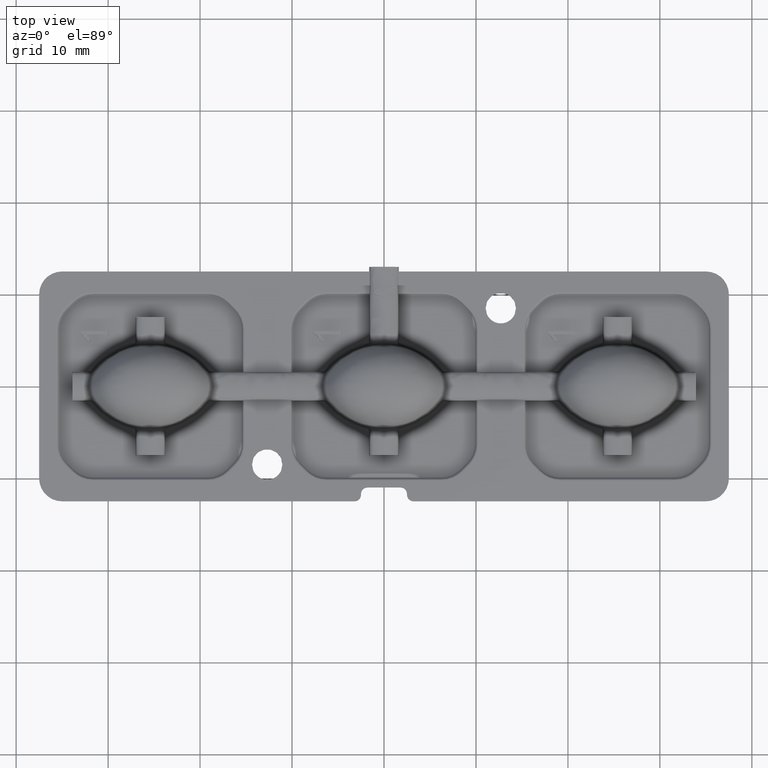
[diagram: clean part render]
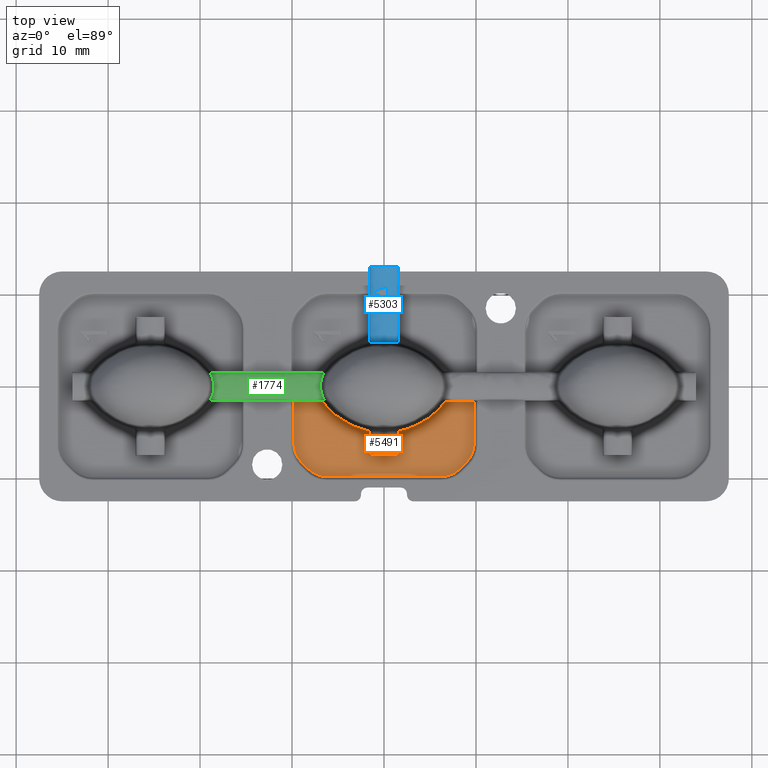
[diagram: same view with three faces highlighted in distinct colors, each labeled with its STEP entity id]
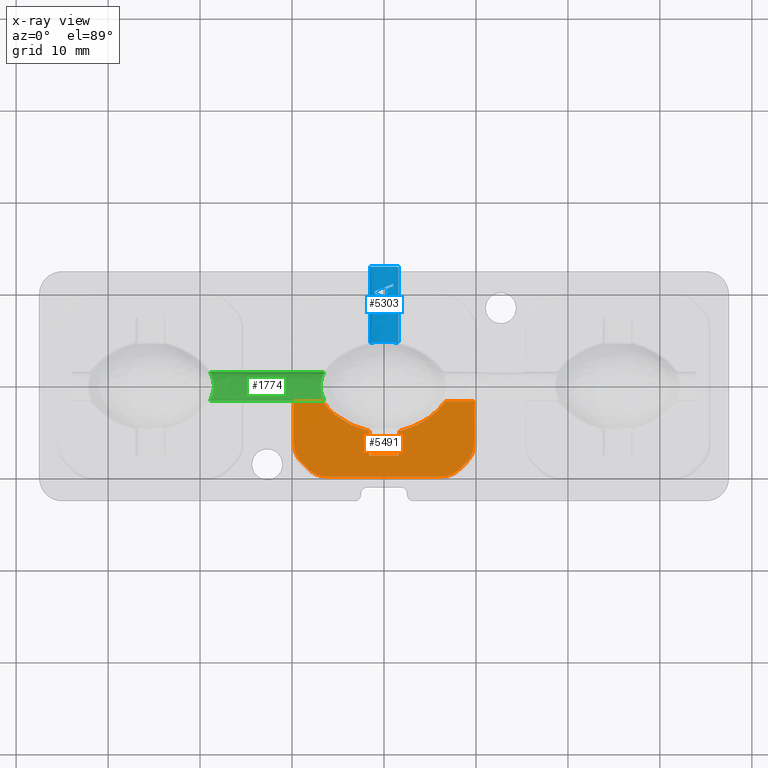
[diagram: x-ray of the same camera — body ghosted, the three highlighted faces saturated]
A machine part, top view with three faces highlighted in distinct colors.
The next image is the same camera in x-ray (body ghosted, the three faces saturated) — at least one of them is partly hidden behind the body in this view.
Their STEP definitions:

[orange] entity #5491 — the highlighted planar face has unit normal (-0, 0, 1).
#24 = CARTESIAN_POINT ( 'NONE',  ( 5.871946985160228400, -2.603623329385546600, 1.200000000000000400 ) ) ;
#56 = EDGE_CURVE ( 'NONE', #11094, #12962, #13674, .T. ) ;
#211 = CARTESIAN_POINT ( 'NONE',  ( 8.230346396616212700, -8.972987083735494800, 1.200000000000000000 ) ) ;
#298 = LINE ( 'NONE', #6994, #14225 ) ;
#340 = VERTEX_POINT ( 'NONE', #2918 ) ;
#356 = ORIENTED_EDGE ( 'NONE', *, *, #2196, .F. ) ;
#579 = ORIENTED_EDGE ( 'NONE', *, *, #6089, .T. ) ;
#589 = CARTESIAN_POINT ( 'NONE',  ( 1.604986396231113100, -13.50000000000001400, 1.200000000000000200 ) ) ;
#653 = DIRECTION ( 'NONE',  ( -1.000000000000000000, -2.891205793294677300E-016, -0.0000000000000000000 ) ) ;
#657 = ORIENTED_EDGE ( 'NONE', *, *, #5095, .T. ) ;
#709 = LINE ( 'NONE', #7538, #8323 ) ;
#718 = CARTESIAN_POINT ( 'NONE',  ( -4.889773173243635400, -3.431360263102932500, 1.200000000000000400 ) ) ;
#1070 = EDGE_CURVE ( 'NONE', #11094, #9932, #16345, .T. ) ;
#1092 = CARTESIAN_POINT ( 'NONE',  ( 9.790225092205682600, -6.257359312880716100, 1.200000000000000000 ) ) ;
#1179 = EDGE_CURVE ( 'NONE', #7366, #9932, #709, .T. ) ;
#1235 = VERTEX_POINT ( 'NONE', #11677 ) ;
#1387 = B_SPLINE_CURVE_WITH_KNOTS ( 'NONE', 3,
 ( #16191, #14839, #13473, #8116, #24, #9478, #1388, #10822, #2766, #12179, #4098, #13528 ),
 .UNSPECIFIED., .F., .F.,
 ( 4, 2, 2, 2, 2, 4 ),
 ( 4.725603763319382100E-014, 0.0007684751438846710100, 0.001536950287722086000, 0.003073900575396913300, 0.004610850863071738700, 0.006147801150746564100 ),
 .UNSPECIFIED. ) ;
#1388 = CARTESIAN_POINT ( 'NONE',  ( 4.883527946134527100, -3.435620280224842600, 1.199999999999998800 ) ) ;
#1568 = VECTOR ( 'NONE', #4537, 1000.000000000000000 ) ;
#1692 = ORIENTED_EDGE ( 'NONE', *, *, #5989, .T. ) ;
#1751 = EDGE_CURVE ( 'NONE', #4197, #2203, #3077, .T. ) ;
#1933 = CIRCLE ( 'NONE', #3177, 2.790225092205679000 ) ;
#2097 = CARTESIAN_POINT ( 'NONE',  ( -5.874902348171310100, -2.600703894446303500, 1.200000000000000200 ) ) ;
#2179 = DIRECTION ( 'NONE',  ( -0.0000000000000000000, 0.0000000000000000000, 1.000000000000000000 ) ) ;
#2196 = EDGE_CURVE ( 'NONE', #7366, #8088, #5170, .T. ) ;
#2203 = VERTEX_POINT ( 'NONE', #3444 ) ;
#2322 = ORIENTED_EDGE ( 'NONE', *, *, #3199, .T. ) ;
#2766 = CARTESIAN_POINT ( 'NONE',  ( 3.552732268703699500, -4.205318067845257500, 1.199999999999997300 ) ) ;
#2918 = CARTESIAN_POINT ( 'NONE',  ( 9.790225092205680800, -1.604986396231115700, 1.200000000000000000 ) ) ;
#3077 = LINE ( 'NONE', #7702, #16153 ) ;
#3177 = AXIS2_PLACEMENT_3D ( 'NONE', #7728, #17171, #9097 ) ;
#3199 = EDGE_CURVE ( 'NONE', #15365, #8088, #1387, .T. ) ;
#3282 = AXIS2_PLACEMENT_3D ( 'NONE', #3296, #12697, #4619 ) ;
#3296 = CARTESIAN_POINT ( 'NONE',  ( 7.000000000000000900, -6.257359312880716100, 1.200000000000000000 ) ) ;
#3392 = CARTESIAN_POINT ( 'NONE',  ( -2.598727141043612100, -4.596356834775626500, 1.200000000000000000 ) ) ;
#3444 = CARTESIAN_POINT ( 'NONE',  ( 8.972987083735498400, -8.230346396616209100, 1.200000000000000000 ) ) ;
#3451 = CARTESIAN_POINT ( 'NONE',  ( -6.387924370799548300, -2.030140906998150600, 1.199999999999999700 ) ) ;
#3512 = DIRECTION ( 'NONE',  ( 1.000000000000000000, 2.312964634635743400E-016, 0.0000000000000000000 ) ) ;
#3854 = VERTEX_POINT ( 'NONE', #7480 ) ;
#4049 = DIRECTION ( 'NONE',  ( -1.156482317317872000E-016, 1.000000000000000000, -0.0000000000000000000 ) ) ;
#4098 = CARTESIAN_POINT ( 'NONE',  ( 2.111039416817546600, -4.752664215908646700, 1.200000000000000600 ) ) ;
#4197 = VERTEX_POINT ( 'NONE', #211 ) ;
#4342 = EDGE_CURVE ( 'NONE', #2203, #14796, #8696, .T. ) ;
#4537 = DIRECTION ( 'NONE',  ( -2.891205793294677300E-016, 1.000000000000000000, -0.0000000000000000000 ) ) ;
#4619 = DIRECTION ( 'NONE',  ( 1.000000000000000000, 0.0000000000000000000, 0.0000000000000000000 ) ) ;
#4640 = EDGE_CURVE ( 'NONE', #14796, #340, #16503, .T. ) ;
#4784 = CARTESIAN_POINT ( 'NONE',  ( -6.681766801648329600, -1.604986396231120200, 1.200000000000000200 ) ) ;
#4918 = VERTEX_POINT ( 'NONE', #14774 ) ;
#5003 = VECTOR ( 'NONE', #3512, 1000.000000000000000 ) ;
#5095 = EDGE_CURVE ( 'NONE', #11211, #4197, #1933, .T. ) ;
#5170 = LINE ( 'NONE', #589, #1568 ) ;
#5350 = ORIENTED_EDGE ( 'NONE', *, *, #1179, .T. ) ;
#5491 = ADVANCED_FACE ( 'NONE', ( #12060 ), #14241, .T. ) ;
#5551 = CARTESIAN_POINT ( 'NONE',  ( -8.230346396616207400, -8.972987083735501900, 1.200000000000000000 ) ) ;
#5960 = ORIENTED_EDGE ( 'NONE', *, *, #4640, .T. ) ;
#5989 = EDGE_CURVE ( 'NONE', #340, #15365, #16613, .T. ) ;
#6067 = CARTESIAN_POINT ( 'NONE',  ( 6.257359312880717900, -9.790225092205680800, 1.200000000000000000 ) ) ;
#6089 = EDGE_CURVE ( 'NONE', #15168, #11211, #6274, .T. ) ;
#6274 = LINE ( 'NONE', #7562, #5003 ) ;
#6343 = DIRECTION ( 'NONE',  ( 0.7071067811865470200, 0.7071067811865480200, 0.0000000000000000000 ) ) ;
#6352 = CARTESIAN_POINT ( 'NONE',  ( -6.257359312880714300, -7.000000000000003600, 1.200000000000000000 ) ) ;
#6613 = DIRECTION ( 'NONE',  ( 2.891205793294677300E-016, -1.000000000000000000, 0.0000000000000000000 ) ) ;
#6791 = ORIENTED_EDGE ( 'NONE', *, *, #1751, .T. ) ;
#6959 = CARTESIAN_POINT ( 'NONE',  ( -6.999999999999999100, -6.257359312880718800, 1.200000000000000000 ) ) ;
#6994 = CARTESIAN_POINT ( 'NONE',  ( -8.601666740175852900, -8.601666740175856400, 1.200000000000000000 ) ) ;
#7129 = CIRCLE ( 'NONE', #9276, 2.790225092205679900 ) ;
#7366 = VERTEX_POINT ( 'NONE', #12280 ) ;
#7443 = CARTESIAN_POINT ( 'NONE',  ( -1.604986396231095700, -4.868196446352627900, 1.200000000000000200 ) ) ;
#7480 = CARTESIAN_POINT ( 'NONE',  ( -8.972987083735494800, -8.230346396616214500, 1.200000000000000000 ) ) ;
#7522 = CARTESIAN_POINT ( 'NONE',  ( 0.0000000000000000000, 0.0000000000000000000, 1.200000000000000000 ) ) ;
#7530 = CARTESIAN_POINT ( 'NONE',  ( -6.681766801648329600, -1.604986396231120200, 1.200000000000000200 ) ) ;
#7538 = CARTESIAN_POINT ( 'NONE',  ( 1.301042606982607500E-015, -7.500000000000016900, 1.200000000000000000 ) ) ;
#7562 = CARTESIAN_POINT ( 'NONE',  ( 2.264444440339520400E-015, -9.790225092205682600, 1.200000000000000000 ) ) ;
#7588 = ORIENTED_EDGE ( 'NONE', *, *, #8021, .T. ) ;
#7702 = CARTESIAN_POINT ( 'NONE',  ( 8.601666740175858200, -8.601666740175847500, 1.200000000000000000 ) ) ;
#7715 = DIRECTION ( 'NONE',  ( 1.000000000000000000, 0.0000000000000000000, 0.0000000000000000000 ) ) ;
#7728 = CARTESIAN_POINT ( 'NONE',  ( 6.257359312880717000, -7.000000000000000000, 1.200000000000000000 ) ) ;
#8014 = CARTESIAN_POINT ( 'NONE',  ( -500025.4000000000200, -1.604986396375681200, 1.200000000000000200 ) ) ;
#8021 = EDGE_CURVE ( 'NONE', #17099, #15168, #9636, .T. ) ;
#8088 = VERTEX_POINT ( 'NONE', #13771 ) ;
#8116 = CARTESIAN_POINT ( 'NONE',  ( 6.051159768579935900, -2.420587394688373400, 1.199999999999998600 ) ) ;
#8224 = CARTESIAN_POINT ( 'NONE',  ( -9.790225092205680800, -1.132222220169760000E-015, 1.200000000000000000 ) ) ;
#8323 = VECTOR ( 'NONE', #16982, 1000.000000000000000 ) ;
#8325 = DIRECTION ( 'NONE',  ( 1.000000000000000000, 0.0000000000000000000, 0.0000000000000000000 ) ) ;
#8685 = CARTESIAN_POINT ( 'NONE',  ( 22.23345744422082500, -1.604986396231111900, 1.200000000000000200 ) ) ;
#8696 = CIRCLE ( 'NONE', #3282, 2.790225092205679000 ) ;
#8812 = CARTESIAN_POINT ( 'NONE',  ( -4.013026375853863600, -3.972434500499423500, 1.200000000000000200 ) ) ;
#9084 = CARTESIAN_POINT ( 'NONE',  ( -6.257359312880713500, -9.790225092205684400, 1.200000000000000000 ) ) ;
#9097 = DIRECTION ( 'NONE',  ( 1.000000000000000000, 0.0000000000000000000, 0.0000000000000000000 ) ) ;
#9173 = AXIS2_PLACEMENT_3D ( 'NONE', #7522, #2179, #11602 ) ;
#9189 = CARTESIAN_POINT ( 'NONE',  ( -1.604986396231095700, -7.500000000000016900, 1.200000000000000200 ) ) ;
#9271 = ORIENTED_EDGE ( 'NONE', *, *, #14909, .T. ) ;
#9276 = AXIS2_PLACEMENT_3D ( 'NONE', #6959, #16407, #8325 ) ;
#9345 = VECTOR ( 'NONE', #4049, 1000.000000000000000 ) ;
#9448 = ORIENTED_EDGE ( 'NONE', *, *, #10691, .T. ) ;
#9478 = CARTESIAN_POINT ( 'NONE',  ( 5.304758042730775900, -3.124135430853006900, 1.200000000000000600 ) ) ;
#9636 = CIRCLE ( 'NONE', #13290, 2.790225092205679900 ) ;
#9693 = EDGE_CURVE ( 'NONE', #3854, #17099, #298, .T. ) ;
#9932 = VERTEX_POINT ( 'NONE', #9189 ) ;
#10179 = CARTESIAN_POINT ( 'NONE',  ( -5.308210513774768400, -3.121377361931393100, 1.200000000000000000 ) ) ;
#10630 = LINE ( 'NONE', #8224, #14645 ) ;
#10691 = EDGE_CURVE ( 'NONE', #1235, #3854, #7129, .T. ) ;
#10822 = CARTESIAN_POINT ( 'NONE',  ( 4.008845946473726100, -3.974602842785590200, 1.199999999999998600 ) ) ;
#11067 = DIRECTION ( 'NONE',  ( 0.7071067811865477900, -0.7071067811865473500, 0.0000000000000000000 ) ) ;
#11094 = VERTEX_POINT ( 'NONE', #14969 ) ;
#11117 = CARTESIAN_POINT ( 'NONE',  ( 6.681766774022442200, -1.604986396231116400, 1.200000000000000200 ) ) ;
#11145 = ORIENTED_EDGE ( 'NONE', *, *, #1070, .F. ) ;
#11211 = VERTEX_POINT ( 'NONE', #6067 ) ;
#11325 = ORIENTED_EDGE ( 'NONE', *, *, #56, .T. ) ;
#11518 = CARTESIAN_POINT ( 'NONE',  ( -6.053741275003224200, -2.417796191609667300, 1.200000000000000000 ) ) ;
#11602 = DIRECTION ( 'NONE',  ( 1.000000000000000000, 0.0000000000000000000, 0.0000000000000000000 ) ) ;
#11677 = CARTESIAN_POINT ( 'NONE',  ( -9.790225092205680800, -6.257359312880718800, 1.200000000000000000 ) ) ;
#11964 = EDGE_LOOP ( 'NONE', ( #9271, #9448, #15088, #7588, #579, #657, #6791, #14043, #5960, #1692, #2322, #356, #5350, #11145, #11325, #17412 ) ) ;
#12060 = FACE_OUTER_BOUND ( 'NONE', #11964, .T. ) ;
#12179 = CARTESIAN_POINT ( 'NONE',  ( 2.605275337363737200, -4.593979783730624400, 1.199999999999997500 ) ) ;
#12280 = CARTESIAN_POINT ( 'NONE',  ( 1.604986396231113100, -7.500000000000015100, 1.200000000000000200 ) ) ;
#12327 = VECTOR ( 'NONE', #6613, 1000.000000000000000 ) ;
#12697 = DIRECTION ( 'NONE',  ( -0.0000000000000000000, 0.0000000000000000000, 1.000000000000000000 ) ) ;
#12863 = CARTESIAN_POINT ( 'NONE',  ( -6.543406433062817700, -1.825521505752227800, 1.200000000000000400 ) ) ;
#12962 = VERTEX_POINT ( 'NONE', #7530 ) ;
#13022 = VECTOR ( 'NONE', #653, 1000.000000000000000 ) ;
#13290 = AXIS2_PLACEMENT_3D ( 'NONE', #6352, #15789, #7715 ) ;
#13337 = CARTESIAN_POINT ( 'NONE',  ( -1.604986396375657200, 500000.0000000000600, 1.200000000000000200 ) ) ;
#13473 = CARTESIAN_POINT ( 'NONE',  ( 6.386414261580104500, -2.032093195035173500, 1.199999999999998800 ) ) ;
#13528 = CARTESIAN_POINT ( 'NONE',  ( 1.604986396231113100, -4.868196156061174800, 1.200000000000000200 ) ) ;
#13674 = B_SPLINE_CURVE_WITH_KNOTS ( 'NONE', 3,
 ( #7443, #15531, #3392, #16888, #8812, #718, #10179, #2097, #11518, #3451, #12863, #4784 ),
 .UNSPECIFIED., .F., .F.,
 ( 4, 2, 2, 2, 2, 4 ),
 ( 5.365491806645020500E-014, 0.001539940560645865300, 0.003079881121238075600, 0.004619821681830283700, 0.005389791962126387800, 0.006159762242422491900 ),
 .UNSPECIFIED. ) ;
#13727 = VECTOR ( 'NONE', #17449, 1000.000000000000000 ) ;
#13771 = CARTESIAN_POINT ( 'NONE',  ( 1.604986396231113100, -4.868196156061174800, 1.200000000000000200 ) ) ;
#14043 = ORIENTED_EDGE ( 'NONE', *, *, #4342, .T. ) ;
#14225 = VECTOR ( 'NONE', #11067, 1000.000000000000000 ) ;
#14241 = PLANE ( 'NONE',  #9173 ) ;
#14645 = VECTOR ( 'NONE', #16299, 1000.000000000000000 ) ;
#14774 = CARTESIAN_POINT ( 'NONE',  ( -9.790225092205680800, -1.604986396231116600, 1.200000000000000000 ) ) ;
#14796 = VERTEX_POINT ( 'NONE', #1092 ) ;
#14839 = CARTESIAN_POINT ( 'NONE',  ( 6.542612672048586700, -1.826786567312871600, 1.200000000000000200 ) ) ;
#14909 = EDGE_CURVE ( 'NONE', #4918, #1235, #10630, .T. ) ;
#14969 = CARTESIAN_POINT ( 'NONE',  ( -1.604986396231095700, -4.868196446352627900, 1.200000000000000200 ) ) ;
#15088 = ORIENTED_EDGE ( 'NONE', *, *, #9693, .T. ) ;
#15168 = VERTEX_POINT ( 'NONE', #9084 ) ;
#15365 = VERTEX_POINT ( 'NONE', #11117 ) ;
#15531 = CARTESIAN_POINT ( 'NONE',  ( -2.109452835072328700, -4.753026789037837900, 1.200000000000000000 ) ) ;
#15789 = DIRECTION ( 'NONE',  ( -0.0000000000000000000, 0.0000000000000000000, 1.000000000000000000 ) ) ;
#16153 = VECTOR ( 'NONE', #6343, 1000.000000000000000 ) ;
#16189 = CARTESIAN_POINT ( 'NONE',  ( 9.790225092205680800, 1.132222220169760200E-015, 1.200000000000000000 ) ) ;
#16191 = CARTESIAN_POINT ( 'NONE',  ( 6.681766774022442200, -1.604986396231116400, 1.200000000000000200 ) ) ;
#16299 = DIRECTION ( 'NONE',  ( 1.156482317317871700E-016, -1.000000000000000000, 0.0000000000000000000 ) ) ;
#16345 = LINE ( 'NONE', #13337, #12327 ) ;
#16407 = DIRECTION ( 'NONE',  ( -0.0000000000000000000, 0.0000000000000000000, 1.000000000000000000 ) ) ;
#16503 = LINE ( 'NONE', #16189, #9345 ) ;
#16572 = EDGE_CURVE ( 'NONE', #4918, #12962, #17330, .T. ) ;
#16613 = LINE ( 'NONE', #8685, #13022 ) ;
#16888 = CARTESIAN_POINT ( 'NONE',  ( -3.549439143370271700, -4.206975756684886200, 1.200000000000000200 ) ) ;
#16982 = DIRECTION ( 'NONE',  ( -1.000000000000000000, -1.734723475976805900E-016, 0.0000000000000000000 ) ) ;
#17099 = VERTEX_POINT ( 'NONE', #5551 ) ;
#17171 = DIRECTION ( 'NONE',  ( -0.0000000000000000000, 0.0000000000000000000, 1.000000000000000000 ) ) ;
#17330 = LINE ( 'NONE', #8014, #13727 ) ;
#17412 = ORIENTED_EDGE ( 'NONE', *, *, #16572, .F. ) ;
#17449 = DIRECTION ( 'NONE',  ( 1.000000000000000000, 2.891205793294677300E-016, -0.0000000000000000000 ) ) ;

[blue] entity #5303 — the highlighted face is a freeform B-spline surface patch.
#226 = FACE_OUTER_BOUND ( 'NONE', #14054, .T. ) ;
#268 = CARTESIAN_POINT ( 'NONE',  ( 1.000000000000068800, 8.850277927933802900, 1.878465616715162100 ) ) ;
#270 = CARTESIAN_POINT ( 'NONE',  ( 1.551396557744884700, 4.700555855833954400, 1.500000000000000000 ) ) ;
#315 = DIRECTION ( 'NONE',  ( -2.891205793294677300E-016, 1.000000000000000000, -0.0000000000000000000 ) ) ;
#377 = VECTOR ( 'NONE', #14934, 1000.000000000000000 ) ;
#388 = EDGE_CURVE ( 'NONE', #14094, #10120, #13624, .T. ) ;
#464 = CARTESIAN_POINT ( 'NONE',  ( -0.1406771418276011600, 12.99999999996522200, 1.992222364479167900 ) ) ;
#566 = ORIENTED_EDGE ( 'NONE', *, *, #388, .T. ) ;
#795 = LINE ( 'NONE', #6844, #377 ) ;
#806 = VERTEX_POINT ( 'NONE', #1631 ) ;
#853 = CARTESIAN_POINT ( 'NONE',  ( -0.3364983984002533600, 10.63274442594690700, 1.984106906702397800 ) ) ;
#1029 = B_SPLINE_SURFACE_WITH_KNOTS ( 'NONE', 3, 1, ( 
 ( #270, #4284 ),
 ( #1637, #11073 ),
 ( #3013, #12423 ),
 ( #4341, #13779 ) ),
 .UNSPECIFIED., .F., .F., .F.,
 ( 4, 4 ),
 ( 2, 2 ),
 ( 0.0000000000000000000, 1.000000000000000000 ),
 ( 0.0000000000000000000, 1.000000000000000000 ),
 .UNSPECIFIED. ) ;
#1098 = CARTESIAN_POINT ( 'NONE',  ( -0.5728415203271811600, 4.815613606390656700, 1.970967718215550500 ) ) ;
#1165 = CARTESIAN_POINT ( 'NONE',  ( 0.6693417698204753300, 9.388414385372319900, 1.949022290019126500 ) ) ;
#1167 = B_SPLINE_CURVE_WITH_KNOTS ( 'NONE', 3,
 ( #5113, #2358, #11835, #14547, #6467, #15906, #7827, #17261, #9192, #1098, #10543, #2476, #11892, #3836, #13255, #5175, #14609, #6527, #15966, #7882, #17318, #9251 ),
 .UNSPECIFIED., .F., .F.,
 ( 4, 2, 2, 2, 2, 2, 2, 2, 2, 2, 4 ),
 ( -5.999999564826702100E-008, 0.0001078909410122927900, 0.0002158418820202338200, 0.0004317437640361158400, 0.0008635475280678798900, 0.001727155056131407400, 0.002590762584194935400, 0.003022566348226699200, 0.003238468230242580600, 0.003346419171250521400, 0.003454370112258462500 ),
 .UNSPECIFIED. ) ;
#1264 = EDGE_CURVE ( 'NONE', #2316, #16225, #15518, .T. ) ;
#1631 = CARTESIAN_POINT ( 'NONE',  ( -1.551396557744874700, 12.50000000000000400, 1.500000000000000200 ) ) ;
#1637 = CARTESIAN_POINT ( 'NONE',  ( 1.434163770094247300, 4.700555855833954400, 2.156278079737628000 ) ) ;
#1656 = CARTESIAN_POINT ( 'NONE',  ( 1.000000000000068800, 8.850277927933802900, 1.878465616715162100 ) ) ;
#1764 = VERTEX_POINT ( 'NONE', #3709 ) ;
#1837 = CARTESIAN_POINT ( 'NONE',  ( 0.5657967652940795200, 13.00000000005048800, 1.971851134262347500 ) ) ;
#1864 = LINE ( 'NONE', #7546, #12203 ) ;
#2094 = ORIENTED_EDGE ( 'NONE', *, *, #1264, .T. ) ;
#2134 = VECTOR ( 'NONE', #15839, 1000.000000000000000 ) ;
#2240 = CARTESIAN_POINT ( 'NONE',  ( 0.1655054810351266600, 10.83205766496133300, 1.992273706027030800 ) ) ;
#2313 = CARTESIAN_POINT ( 'NONE',  ( 0.7978830794528341000, 10.78936141119123500, 1.932737377856451600 ) ) ;
#2316 = VERTEX_POINT ( 'NONE', #10407 ) ;
#2358 = CARTESIAN_POINT ( 'NONE',  ( -1.545658025916480900, 4.781176024606915900, 1.532124738555414000 ) ) ;
#2476 = CARTESIAN_POINT ( 'NONE',  ( 0.2864335833072216800, 4.828431654386364800, 1.992198830374981600 ) ) ;
#2545 = CARTESIAN_POINT ( 'NONE',  ( 0.1694910904782765700, 9.586872728210364500, 1.992142633867245200 ) ) ;
#2763 = CARTESIAN_POINT ( 'NONE',  ( 1.000000000000068600, 9.257131410256409500, 1.878465616715162100 ) ) ;
#2900 = EDGE_CURVE ( 'NONE', #13888, #17296, #15912, .T. ) ;
#2981 = EDGE_CURVE ( 'NONE', #3809, #9285, #17069, .T. ) ;
#3013 = CARTESIAN_POINT ( 'NONE',  ( -1.434163770094237300, 4.700555855833954400, 2.156278079737625800 ) ) ;
#3204 = CARTESIAN_POINT ( 'NONE',  ( 1.125553234926004900, 12.99999999996521900, 1.848443464120101100 ) ) ;
#3311 = CARTESIAN_POINT ( 'NONE',  ( -0.9999999999930415700, 10.36931089746197200, 1.878465616708745700 ) ) ;
#3475 = CARTESIAN_POINT ( 'NONE',  ( -1.551396557744871200, 4.796338257051487200, 1.500000000000000000 ) ) ;
#3597 = CARTESIAN_POINT ( 'NONE',  ( 0.6694950416595175600, 11.03215928955084000, 1.949051288820351300 ) ) ;
#3673 = CARTESIAN_POINT ( 'NONE',  ( 0.9999999999999997800, 10.86410256409377500, 1.878465616706878500 ) ) ;
#3709 = CARTESIAN_POINT ( 'NONE',  ( -1.000000000000000700, 10.05120192307692200, 1.878465616715177400 ) ) ;
#3809 = VERTEX_POINT ( 'NONE', #3311 ) ;
#3836 = CARTESIAN_POINT ( 'NONE',  ( 0.9909391049692422000, 4.783206184752427400, 1.884720816295779100 ) ) ;
#3887 = CARTESIAN_POINT ( 'NONE',  ( -0.3340784965197949300, 9.786807608212930300, 1.984316524403489700 ) ) ;
#4020 = CARTESIAN_POINT ( 'NONE',  ( 1.000000000000000200, 9.556410256423488300, 1.878465616706878500 ) ) ;
#4284 = CARTESIAN_POINT ( 'NONE',  ( 1.551396557744882500, 12.99999999997680800, 1.500000000000000000 ) ) ;
#4341 = CARTESIAN_POINT ( 'NONE',  ( -1.551396557744871400, 4.700555855833954400, 1.500000000000000000 ) ) ;
#4380 = ORIENTED_EDGE ( 'NONE', *, *, #7432, .T. ) ;
#4473 = CARTESIAN_POINT ( 'NONE',  ( -1.382199035027006100, 13.00000000005048800, 1.725582940220180300 ) ) ;
#4516 = EDGE_CURVE ( 'NONE', #5466, #13888, #1167, .T. ) ;
#4529 = CARTESIAN_POINT ( 'NONE',  ( 1.383429941629816800, 12.99999999996522100, 1.724708253197922300 ) ) ;
#4775 = CARTESIAN_POINT ( 'NONE',  ( 0.3846153846153846400, 9.783974358974358400, 1.977414605960348100 ) ) ;
#4923 = CARTESIAN_POINT ( 'NONE',  ( 1.000000000000068200, 11.16338141025641000, 1.878465616715162100 ) ) ;
#5062 = ORIENTED_EDGE ( 'NONE', *, *, #6742, .T. ) ;
#5087 = DIRECTION ( 'NONE',  ( 2.891205793294677300E-016, -1.000000000000000000, 0.0000000000000000000 ) ) ;
#5113 = CARTESIAN_POINT ( 'NONE',  ( -1.551396557744871200, 4.796338257051487200, 1.500000000000000000 ) ) ;
#5135 = ORIENTED_EDGE ( 'NONE', *, *, #16017, .T. ) ;
#5175 = CARTESIAN_POINT ( 'NONE',  ( 1.324855847315411900, 4.755441841975180500, 1.757467659278951800 ) ) ;
#5240 = CARTESIAN_POINT ( 'NONE',  ( -0.8359647454409279100, 9.986074143633956600, 1.922511815956493600 ) ) ;
#5303 = ADVANCED_FACE ( 'NONE', ( #226, #7398 ), #1029, .F. ) ;
#5454 = VERTEX_POINT ( 'NONE', #7401 ) ;
#5466 = VERTEX_POINT ( 'NONE', #3475 ) ;
#5705 = LINE ( 'NONE', #6403, #2134 ) ;
#5834 = CARTESIAN_POINT ( 'NONE',  ( -1.122656745839147200, 12.99999999996521900, 1.849542855569813900 ) ) ;
#5854 = ORIENTED_EDGE ( 'NONE', *, *, #2900, .T. ) ;
#5890 = CARTESIAN_POINT ( 'NONE',  ( 1.538639177543472900, 12.99999999995363500, 1.571416786624696400 ) ) ;
#6228 = EDGE_CURVE ( 'NONE', #15606, #17296, #11331, .T. ) ;
#6260 = LINE ( 'NONE', #14349, #17025 ) ;
#6403 = CARTESIAN_POINT ( 'NONE',  ( -1.551396557600309700, -500000.0000000000600, 1.500000000000000000 ) ) ;
#6442 = EDGE_CURVE ( 'NONE', #14952, #15606, #1864, .T. ) ;
#6467 = CARTESIAN_POINT ( 'NONE',  ( -1.468596472399496600, 4.753684722236640100, 1.651714522704380100 ) ) ;
#6486 = VECTOR ( 'NONE', #315, 1000.000000000000000 ) ;
#6527 = CARTESIAN_POINT ( 'NONE',  ( 1.468707158730791600, 4.753709571989674000, 1.651561247632690400 ) ) ;
#6742 = EDGE_CURVE ( 'NONE', #9285, #2316, #13264, .T. ) ;
#6844 = CARTESIAN_POINT ( 'NONE',  ( 0.3846153846153847500, 8.850277927933802900, 1.977414606199531000 ) ) ;
#6925 = ORIENTED_EDGE ( 'NONE', *, *, #15559, .F. ) ;
#7074 = DIRECTION ( 'NONE',  ( 2.891205793294677300E-016, -1.000000000000000000, 0.0000000000000000000 ) ) ;
#7134 = VECTOR ( 'NONE', #5087, 1000.000000000000000 ) ;
#7198 = CARTESIAN_POINT ( 'NONE',  ( -0.7069722090650801800, 13.00000000005048600, 1.943019858328202800 ) ) ;
#7398 = FACE_BOUND ( 'NONE', #7558, .T. ) ;
#7401 = CARTESIAN_POINT ( 'NONE',  ( 0.3846153846153846400, 9.783974358974358400, 1.977414605960348100 ) ) ;
#7405 = ORIENTED_EDGE ( 'NONE', *, *, #13151, .T. ) ;
#7432 = EDGE_CURVE ( 'NONE', #8633, #806, #11544, .T. ) ;
#7494 = CARTESIAN_POINT ( 'NONE',  ( 1.000000000000000200, 9.556410256423488300, 1.878465616706878500 ) ) ;
#7546 = CARTESIAN_POINT ( 'NONE',  ( 1.551396557744885600, 10.24999999998499300, 1.500000000000000400 ) ) ;
#7558 = EDGE_LOOP ( 'NONE', ( #7405, #14251, #10011, #5062, #2094, #15732, #5135, #566 ) ) ;
#7586 = CARTESIAN_POINT ( 'NONE',  ( -0.6693417698557718700, 10.50059387261661200, 1.949022290015393500 ) ) ;
#7827 = CARTESIAN_POINT ( 'NONE',  ( -1.323412390139641500, 4.755532739691815900, 1.758252106885454600 ) ) ;
#7882 = CARTESIAN_POINT ( 'NONE',  ( 1.532127480798507000, 4.769607678046218900, 1.565388803046370500 ) ) ;
#7952 = CARTESIAN_POINT ( 'NONE',  ( 1.551396557889446400, -500000.0000000000600, 1.500000000000000000 ) ) ;
#7960 = VECTOR ( 'NONE', #9926, 1000.000000000000000 ) ;
#8410 = CARTESIAN_POINT ( 'NONE',  ( -1.000000000000000200, 8.850277927933802900, 1.878465616715177400 ) ) ;
#8558 = CARTESIAN_POINT ( 'NONE',  ( -0.2819518070772036300, 12.99999999987995600, 1.986512827461247800 ) ) ;
#8633 = VERTEX_POINT ( 'NONE', #13691 ) ;
#8916 = DIRECTION ( 'NONE',  ( 2.891205793294677300E-016, -1.000000000000000000, 0.0000000000000000000 ) ) ;
#8939 = DIRECTION ( 'NONE',  ( 2.891205793294677300E-016, -1.000000000000000000, 0.0000000000000000000 ) ) ;
#8958 = CARTESIAN_POINT ( 'NONE',  ( -0.9999999999930415700, 10.36931089746197200, 1.878465616708745700 ) ) ;
#9160 = CARTESIAN_POINT ( 'NONE',  ( -1.551396557744873000, 10.24848266170126500, 1.500000000000000000 ) ) ;
#9192 = CARTESIAN_POINT ( 'NONE',  ( -0.9911162417496367500, 4.783192421013071200, 1.884686317176627500 ) ) ;
#9246 = B_SPLINE_CURVE_WITH_KNOTS ( 'NONE', 3,
 ( #4775, #16880, #15584, #7494 ),
 .UNSPECIFIED., .F., .F.,
 ( 4, 4 ),
 ( 3.622220555943289400E-014, 0.0006635318742488616500 ),
 .UNSPECIFIED. ) ;
#9251 = CARTESIAN_POINT ( 'NONE',  ( 1.551396557744884900, 4.796338610901771400, 1.500000000000000000 ) ) ;
#9285 = VERTEX_POINT ( 'NONE', #13679 ) ;
#9610 = CARTESIAN_POINT ( 'NONE',  ( 1.551396557744885600, 10.24848266170126500, 1.500000000000000400 ) ) ;
#9810 = CARTESIAN_POINT ( 'NONE',  ( -1.551396557744873000, 10.24999999998499300, 1.500000000000000000 ) ) ;
#9926 = DIRECTION ( 'NONE',  ( 2.891205793294677300E-016, -1.000000000000000000, 0.0000000000000000000 ) ) ;
#9927 = CARTESIAN_POINT ( 'NONE',  ( 0.2828510345996256800, 12.99999999996522100, 1.992180877143086900 ) ) ;
#10011 = ORIENTED_EDGE ( 'NONE', *, *, #2981, .T. ) ;
#10075 = LINE ( 'NONE', #8410, #6486 ) ;
#10120 = VERTEX_POINT ( 'NONE', #2763 ) ;
#10217 = B_SPLINE_CURVE_WITH_KNOTS ( 'NONE', 3,
 ( #11897, #14615, #1165, #10603, #2545, #11960, #3887, #13316, #5240, #14679 ),
 .UNSPECIFIED., .F., .F.,
 ( 4, 2, 2, 2, 4 ),
 ( 2.387090951854077800E-014, 0.0005394813731535447100, 0.001078962746283218300, 0.001618444119412891800, 0.002157925492542565500 ),
 .UNSPECIFIED. ) ;
#10317 = CARTESIAN_POINT ( 'NONE',  ( -0.1694910904870776100, 10.69905221529045600, 1.992142633866673200 ) ) ;
#10386 = CARTESIAN_POINT ( 'NONE',  ( 0.5921083062653554900, 10.71326761463179600, 1.961149356409584800 ) ) ;
#10407 = CARTESIAN_POINT ( 'NONE',  ( 0.9999999999999997800, 10.86410256409377500, 1.878465616706878500 ) ) ;
#10423 = ORIENTED_EDGE ( 'NONE', *, *, #4516, .T. ) ;
#10543 = CARTESIAN_POINT ( 'NONE',  ( -0.2860874688013089800, 4.828439963922020800, 1.992218283357569200 ) ) ;
#10603 = CARTESIAN_POINT ( 'NONE',  ( 0.3364983983691154900, 9.520564938700964300, 1.984106906703770900 ) ) ;
#10668 = EDGE_CURVE ( 'NONE', #16225, #5454, #795, .T. ) ;
#11073 = CARTESIAN_POINT ( 'NONE',  ( 1.434163770094244900, 12.99999999997680800, 2.156278079737628000 ) ) ;
#11128 = EDGE_CURVE ( 'NONE', #8633, #14952, #13367, .T. ) ;
#11160 = CARTESIAN_POINT ( 'NONE',  ( -1.551396557744873800, 12.99999999997680800, 1.500000000000000000 ) ) ;
#11273 = CARTESIAN_POINT ( 'NONE',  ( 0.9862963936344523200, 13.00000000005048400, 1.885957029878443800 ) ) ;
#11331 = LINE ( 'NONE', #14522, #7134 ) ;
#11544 = LINE ( 'NONE', #9810, #7960 ) ;
#11644 = ORIENTED_EDGE ( 'NONE', *, *, #12147, .T. ) ;
#11662 = CARTESIAN_POINT ( 'NONE',  ( 0.3340784964910963300, 10.89898709553564700, 1.984316524404316200 ) ) ;
#11835 = CARTESIAN_POINT ( 'NONE',  ( -1.532319936695172100, 4.769671852124664800, 1.565095974334969500 ) ) ;
#11848 = EDGE_CURVE ( 'NONE', #1764, #3809, #10075, .T. ) ;
#11892 = CARTESIAN_POINT ( 'NONE',  ( 0.5733167257295770400, 4.815577704075587400, 1.970873773326791600 ) ) ;
#11897 = CARTESIAN_POINT ( 'NONE',  ( 1.000000000000068600, 9.257131410256409500, 1.878465616715162100 ) ) ;
#11960 = CARTESIAN_POINT ( 'NONE',  ( -0.1655054810387393300, 9.719878177879177600, 1.992273706026472100 ) ) ;
#12147 = EDGE_CURVE ( 'NONE', #806, #16178, #6260, .T. ) ;
#12203 = VECTOR ( 'NONE', #8916, 1000.000000000000000 ) ;
#12286 = CARTESIAN_POINT ( 'NONE',  ( 1.551396557744882500, 12.99999999997680800, 1.500000000000000000 ) ) ;
#12308 = VECTOR ( 'NONE', #14740, 1000.000000000000000 ) ;
#12423 = CARTESIAN_POINT ( 'NONE',  ( -1.434163770094239800, 12.99999999997680800, 2.156278079737625800 ) ) ;
#12555 = CARTESIAN_POINT ( 'NONE',  ( -1.492402954583139200, 13.00000000005048600, 1.632040327848482300 ) ) ;
#12613 = CARTESIAN_POINT ( 'NONE',  ( 1.319979908942054700, 12.99999999996522200, 1.760047802055438400 ) ) ;
#13006 = CARTESIAN_POINT ( 'NONE',  ( 0.8359647454355635400, 11.09825363068829800, 1.922511815961735400 ) ) ;
#13084 = CARTESIAN_POINT ( 'NONE',  ( 0.3846153846153841900, 10.63653846153846100, 1.977414606199531000 ) ) ;
#13151 = EDGE_CURVE ( 'NONE', #10120, #1764, #10217, .T. ) ;
#13220 = VECTOR ( 'NONE', #7074, 1000.000000000000000 ) ;
#13237 = ORIENTED_EDGE ( 'NONE', *, *, #6228, .F. ) ;
#13255 = CARTESIAN_POINT ( 'NONE',  ( 1.129924827116828300, 4.769993847783233300, 1.847144579010887800 ) ) ;
#13264 = LINE ( 'NONE', #268, #16422 ) ;
#13316 = CARTESIAN_POINT ( 'NONE',  ( -0.6694950416828413500, 9.919979802225981300, 1.949051288819423400 ) ) ;
#13367 = B_SPLINE_CURVE_WITH_KNOTS ( 'NONE', 3,
 ( #11160, #13857, #12555, #4473, #13917, #5834, #15277, #7198, #16639, #8558, #464, #9927, #1837, #11273, #3204, #12613, #4529, #13969, #5890, #15335 ),
 .UNSPECIFIED., .F., .F.,
 ( 4, 2, 2, 2, 2, 2, 2, 2, 2, 4 ),
 ( 0.0000000000000000000, 0.0002155159795288216300, 0.0004310319590576432700, 0.0008620639181152862100, 0.001293095877172929300, 0.001724127836230572600, 0.002586191754345859100, 0.003017223713403502400, 0.003232739692932324000, 0.003448255672461145300 ),
 .UNSPECIFIED. ) ;
#13624 = LINE ( 'NONE', #1656, #13220 ) ;
#13679 = CARTESIAN_POINT ( 'NONE',  ( 1.000000000000068200, 11.16338141025641000, 1.878465616715162100 ) ) ;
#13691 = CARTESIAN_POINT ( 'NONE',  ( -1.551396557744873800, 12.99999999997680800, 1.500000000000000000 ) ) ;
#13779 = CARTESIAN_POINT ( 'NONE',  ( -1.551396557744873800, 12.99999999997680800, 1.500000000000000000 ) ) ;
#13857 = CARTESIAN_POINT ( 'NONE',  ( -1.538556453385984300, 12.99999999997681000, 1.571879882762794400 ) ) ;
#13888 = VERTEX_POINT ( 'NONE', #15693 ) ;
#13917 = CARTESIAN_POINT ( 'NONE',  ( -1.319236648554233700, 12.99999999996522100, 1.760492658798671600 ) ) ;
#13969 = CARTESIAN_POINT ( 'NONE',  ( 1.492587558576292400, 12.99999999996522100, 1.631711292709908700 ) ) ;
#14054 = EDGE_LOOP ( 'NONE', ( #6925, #10423, #5854, #13237, #15711, #14550, #4380, #11644 ) ) ;
#14094 = VERTEX_POINT ( 'NONE', #4020 ) ;
#14251 = ORIENTED_EDGE ( 'NONE', *, *, #11848, .T. ) ;
#14349 = CARTESIAN_POINT ( 'NONE',  ( -1.551396557744873000, 10.24999999998499300, 1.500000000000000000 ) ) ;
#14522 = CARTESIAN_POINT ( 'NONE',  ( 1.551396557744885600, 10.24999999998499300, 1.500000000000000400 ) ) ;
#14547 = CARTESIAN_POINT ( 'NONE',  ( -1.493536361789327400, 4.756261910675856800, 1.624851986918743000 ) ) ;
#14550 = ORIENTED_EDGE ( 'NONE', *, *, #11128, .F. ) ;
#14606 = CARTESIAN_POINT ( 'NONE',  ( 1.551396557744882700, 12.50000000000000400, 1.500000000000000000 ) ) ;
#14609 = CARTESIAN_POINT ( 'NONE',  ( 1.387916119945089100, 4.751110456759141300, 1.721779846275001400 ) ) ;
#14615 = CARTESIAN_POINT ( 'NONE',  ( 0.8352232656251406000, 9.322553583235258400, 1.922710915654886900 ) ) ;
#14679 = CARTESIAN_POINT ( 'NONE',  ( -1.000000000000000700, 10.05120192307692200, 1.878465616715177400 ) ) ;
#14701 = CARTESIAN_POINT ( 'NONE',  ( 0.3846153846153841900, 10.63653846153846100, 1.977414606199531000 ) ) ;
#14740 = DIRECTION ( 'NONE',  ( -2.891205793294677300E-016, 1.000000000000000000, -0.0000000000000000000 ) ) ;
#14934 = DIRECTION ( 'NONE',  ( 2.891205793294677300E-016, -1.000000000000000000, 0.0000000000000000000 ) ) ;
#14952 = VERTEX_POINT ( 'NONE', #12286 ) ;
#15031 = DIRECTION ( 'NONE',  ( 2.891205793294677300E-016, -1.000000000000000000, 0.0000000000000000000 ) ) ;
#15277 = CARTESIAN_POINT ( 'NONE',  ( -0.9855338501378908500, 13.00000000005048800, 1.886106609567683500 ) ) ;
#15335 = CARTESIAN_POINT ( 'NONE',  ( 1.551396557744882500, 12.99999999997680800, 1.500000000000000000 ) ) ;
#15518 = B_SPLINE_CURVE_WITH_KNOTS ( 'NONE', 3,
 ( #3673, #2313, #10386, #13084 ),
 .UNSPECIFIED., .F., .F.,
 ( 4, 4 ),
 ( 2.550738310811706700E-014, 0.0006635318742243239800 ),
 .UNSPECIFIED. ) ;
#15559 = EDGE_CURVE ( 'NONE', #5466, #16178, #5705, .T. ) ;
#15584 = CARTESIAN_POINT ( 'NONE',  ( 0.7978830794742557400, 9.631151409463482700, 1.932737377839338200 ) ) ;
#15606 = VERTEX_POINT ( 'NONE', #14606 ) ;
#15693 = CARTESIAN_POINT ( 'NONE',  ( 1.551396557744884900, 4.796338610901771400, 1.500000000000000000 ) ) ;
#15711 = ORIENTED_EDGE ( 'NONE', *, *, #6442, .F. ) ;
#15732 = ORIENTED_EDGE ( 'NONE', *, *, #10668, .T. ) ;
#15839 = DIRECTION ( 'NONE',  ( -2.891205793294677300E-016, 1.000000000000000000, -0.0000000000000000000 ) ) ;
#15906 = CARTESIAN_POINT ( 'NONE',  ( -1.386778759248210400, 4.751115652172446200, 1.722652788613739000 ) ) ;
#15912 = LINE ( 'NONE', #7952, #12308 ) ;
#15966 = CARTESIAN_POINT ( 'NONE',  ( 1.493747775890828900, 4.756333470182634700, 1.624529946487765400 ) ) ;
#16017 = EDGE_CURVE ( 'NONE', #5454, #14094, #9246, .T. ) ;
#16178 = VERTEX_POINT ( 'NONE', #9160 ) ;
#16225 = VERTEX_POINT ( 'NONE', #14701 ) ;
#16422 = VECTOR ( 'NONE', #15031, 1000.000000000000000 ) ;
#16639 = CARTESIAN_POINT ( 'NONE',  ( -0.5647282188935307500, 12.99999999987995700, 1.961913381918054500 ) ) ;
#16880 = CARTESIAN_POINT ( 'NONE',  ( 0.5921083062319717500, 9.707245205671766200, 1.961149356403511400 ) ) ;
#17023 = CARTESIAN_POINT ( 'NONE',  ( -0.8352232656459390700, 10.43473307040826000, 1.922710915624419100 ) ) ;
#17025 = VECTOR ( 'NONE', #8939, 1000.000000000000000 ) ;
#17069 = B_SPLINE_CURVE_WITH_KNOTS ( 'NONE', 3,
 ( #8958, #17023, #7586, #853, #10317, #2240, #11662, #3597, #13006, #4923 ),
 .UNSPECIFIED., .F., .F.,
 ( 4, 2, 2, 2, 4 ),
 ( 1.704169174911495700E-014, 0.0005394813731541428600, 0.001078962746291244000, 0.001618444119428345200, 0.002157925492565446100 ),
 .UNSPECIFIED. ) ;
#17261 = CARTESIAN_POINT ( 'NONE',  ( -1.127950663310336200, 4.770174270361765800, 1.847807441723495100 ) ) ;
#17296 = VERTEX_POINT ( 'NONE', #9610 ) ;
#17318 = CARTESIAN_POINT ( 'NONE',  ( 1.545658026113627500, 4.781176376034369300, 1.532124737392774000 ) ) ;

[green] entity #1774 — the highlighted face is a freeform B-spline surface patch.
#61 = LINE ( 'NONE', #4055, #17169 ) ;
#124 = CARTESIAN_POINT ( 'NONE',  ( -18.89079401678605300, 1.488386702373820900, 1.631154142516029600 ) ) ;
#418 = CARTESIAN_POINT ( 'NONE',  ( -18.59228467469119600, -0.7244052953923682000, 1.940215796640635300 ) ) ;
#629 = ORIENTED_EDGE ( 'NONE', *, *, #12249, .T. ) ;
#639 = CARTESIAN_POINT ( 'NONE',  ( -6.556588747724432200, -1.382272151421444900, 1.725199216121184200 ) ) ;
#691 = CARTESIAN_POINT ( 'NONE',  ( -6.668557637085616100, 1.132995988237249100, 1.845582425259364200 ) ) ;
#823 = VERTEX_POINT ( 'NONE', #11007 ) ;
#1091 = CARTESIAN_POINT ( 'NONE',  ( -18.97252427710327500, 1.434163770094225800, 2.156278079737626200 ) ) ;
#1122 = VERTEX_POINT ( 'NONE', #13444 ) ;
#1134 = VECTOR ( 'NONE', #5283, 1000.000000000000000 ) ;
#1260 = ORIENTED_EDGE ( 'NONE', *, *, #14546, .T. ) ;
#1487 = CARTESIAN_POINT ( 'NONE',  ( -18.84341125667921400, 1.382272151691460400, 1.725199215938820800 ) ) ;
#1774 = ADVANCED_FACE ( 'NONE', ( #2235 ), #11689, .F. ) ;
#1785 = CARTESIAN_POINT ( 'NONE',  ( -18.73144236003579300, -1.132995987294997100, 1.845582425593660100 ) ) ;
#1849 = CARTESIAN_POINT ( 'NONE',  ( -15.15151733829873800, -1.551396557744894500, 1.499999999999999800 ) ) ;
#2015 = CARTESIAN_POINT ( 'NONE',  ( -6.668044877208662200, -1.134171232771913100, 1.845060661693287600 ) ) ;
#2079 = CARTESIAN_POINT ( 'NONE',  ( -6.556465529860244800, 1.382533733580017000, 1.725013216020017600 ) ) ;
#2142 = VERTEX_POINT ( 'NONE', #1849 ) ;
#2235 = FACE_OUTER_BOUND ( 'NONE', #6098, .T. ) ;
#2251 = DIRECTION ( 'NONE',  ( 1.000000000000000000, 2.891205793294677300E-016, -0.0000000000000000000 ) ) ;
#2294 = VERTEX_POINT ( 'NONE', #3632 ) ;
#2471 = CARTESIAN_POINT ( 'NONE',  ( -18.97252427710327500, 1.551396557744862500, 1.500000000000000000 ) ) ;
#2863 = CARTESIAN_POINT ( 'NONE',  ( -18.73195512565515500, 1.134171233658331600, 1.845060661377689200 ) ) ;
#3104 = VERTEX_POINT ( 'NONE', #6589 ) ;
#3151 = CARTESIAN_POINT ( 'NONE',  ( -18.84353446562627400, -1.382533733307637300, 1.725013216227757400 ) ) ;
#3370 = CARTESIAN_POINT ( 'NONE',  ( -6.807855225087559200, -0.7238281662708433400, 1.940287939494856000 ) ) ;
#3431 = CARTESIAN_POINT ( 'NONE',  ( -6.509312022364254000, 1.488004399934108600, 1.631670806493567700 ) ) ;
#3632 = CARTESIAN_POINT ( 'NONE',  ( -18.87900511145325300, 1.551396557744862700, 1.500000000000000000 ) ) ;
#4055 = CARTESIAN_POINT ( 'NONE',  ( -500025.4000000000200, 1.551396557600300400, 1.500000000000000000 ) ) ;
#4095 = LINE ( 'NONE', #6982, #14437 ) ;
#4235 = VECTOR ( 'NONE', #2251, 1000.000000000000000 ) ;
#4365 = VERTEX_POINT ( 'NONE', #11363 ) ;
#4421 = CARTESIAN_POINT ( 'NONE',  ( -18.59214477584561800, 0.7238281679223541600, 1.940287939223208900 ) ) ;
#4477 = CARTESIAN_POINT ( 'NONE',  ( -18.89068797262664400, -1.488004399818489800, 1.631670806630239900 ) ) ;
#4704 = CARTESIAN_POINT ( 'NONE',  ( -6.892715531877986900, -0.2949150300498916100, 1.985868610953825700 ) ) ;
#4763 = CARTESIAN_POINT ( 'NONE',  ( -6.505145806615671800, 1.545440307333467300, 1.533314976452316600 ) ) ;
#5104 = CARTESIAN_POINT ( 'NONE',  ( -6.427475728344237600, -1.552803365349041000, 1.492124583817264500 ) ) ;
#5153 = VERTEX_POINT ( 'NONE', #13219 ) ;
#5283 = DIRECTION ( 'NONE',  ( 1.000000000000000000, 2.891205793294677300E-016, -0.0000000000000000000 ) ) ;
#5494 = CARTESIAN_POINT ( 'NONE',  ( -18.89485261085588500, 1.545445129352363000, 1.533316549703133100 ) ) ;
#5781 = CARTESIAN_POINT ( 'NONE',  ( -18.50728446832367900, 0.2949150317612036500, 1.985868610852534700 ) ) ;
#5837 = CARTESIAN_POINT ( 'NONE',  ( -18.89485268760516600, -1.545445128872459600, 1.533316552369517800 ) ) ;
#5898 = B_SPLINE_CURVE_WITH_KNOTS ( 'NONE', 3,
 ( #12717, #10035, #7365, #16807, #8730, #639, #10096, #2015, #11442, #3370, #12778, #4704, #14146, #6064, #15514, #7423, #16868, #8792, #691, #10159, #2079, #11498, #3431, #12846, #4763, #14200 ),
 .UNSPECIFIED., .F., .F.,
 ( 4, 2, 2, 2, 2, 2, 2, 2, 2, 2, 2, 2, 4 ),
 ( -5.999999422234334200E-008, 0.0001120515378132429700, 0.0002241630756207082800, 0.0004483861512356396800, 0.0008968323024655041100, 0.001345278453695368500, 0.001793724604925233000, 0.002242170756155097700, 0.002690616907384961700, 0.003139063058614826600, 0.003363286134229758000, 0.003475397672037224300, 0.003587509209844689400 ),
 .UNSPECIFIED. ) ;
#6064 = CARTESIAN_POINT ( 'NONE',  ( -6.906386331070234700, 0.1480862760582196100, 1.992172386715531900 ) ) ;
#6098 = EDGE_LOOP ( 'NONE', ( #15267, #629, #1260, #8251, #11471, #10530, #7109, #12744 ) ) ;
#6383 = EDGE_CURVE ( 'NONE', #1122, #3104, #5898, .T. ) ;
#6462 = CARTESIAN_POINT ( 'NONE',  ( -6.427475728344237600, -1.552099961546966800, 1.496062291908631700 ) ) ;
#6589 = CARTESIAN_POINT ( 'NONE',  ( -6.520994801405770100, 1.551396557744861400, 1.500000000000000000 ) ) ;
#6847 = CARTESIAN_POINT ( 'NONE',  ( -18.87900511145325300, 1.551396557744862700, 1.500000000000000000 ) ) ;
#6982 = CARTESIAN_POINT ( 'NONE',  ( -500025.4000000000200, -1.551396557889458200, 1.499999999999998700 ) ) ;
#7109 = ORIENTED_EDGE ( 'NONE', *, *, #12743, .F. ) ;
#7141 = CARTESIAN_POINT ( 'NONE',  ( -18.49361366870200000, -0.1480862742045634700, 1.992172386768620500 ) ) ;
#7365 = CARTESIAN_POINT ( 'NONE',  ( -6.500282874464360800, -1.529923721118496400, 1.570143038252671800 ) ) ;
#7423 = CARTESIAN_POINT ( 'NONE',  ( -6.843806609155260300, 0.5808377331085722300, 1.960044856066426300 ) ) ;
#7503 = LINE ( 'NONE', #16567, #14252 ) ;
#7587 = VERTEX_POINT ( 'NONE', #8920 ) ;
#7707 = VECTOR ( 'NONE', #15399, 1000.000000000000000 ) ;
#7819 = CARTESIAN_POINT ( 'NONE',  ( -6.427475728344237600, -1.551396557744892500, 1.499999999999998700 ) ) ;
#7839 = B_SPLINE_CURVE_WITH_KNOTS ( 'NONE', 3,
 ( #6847, #5494, #8214, #124, #9570, #1487, #10919, #2863, #12508, #4421, #13861, #5781, #15232, #7141, #16587, #8514, #418, #9872, #1785, #11220, #3151, #12559, #4477, #13920, #5837, #15281 ),
 .UNSPECIFIED., .F., .F.,
 ( 4, 2, 2, 2, 2, 2, 2, 2, 2, 2, 2, 2, 4 ),
 ( -6.000000933234546100E-008, 0.0001120515377012148500, 0.0002241630754117620600, 0.0004483861508328564600, 0.0008968323016750444000, 0.001345278452517232600, 0.001793724603359420600, 0.002242170754201607800, 0.002690616905043795400, 0.003139063055885982600, 0.003363286131307074200, 0.003475397669017618500, 0.003587509206728161900 ),
 .UNSPECIFIED. ) ;
#8214 = CARTESIAN_POINT ( 'NONE',  ( -18.89971713037647300, 1.529923721219965200, 1.570143038131771600 ) ) ;
#8219 = CARTESIAN_POINT ( 'NONE',  ( -500025.4000000000200, -1.551396557889458200, 1.499999999999998700 ) ) ;
#8251 = ORIENTED_EDGE ( 'NONE', *, *, #14855, .T. ) ;
#8495 = DIRECTION ( 'NONE',  ( 1.000000000000000000, 2.891205793294677300E-016, -0.0000000000000000000 ) ) ;
#8514 = CARTESIAN_POINT ( 'NONE',  ( -18.55619339049895800, -0.5808377315841136700, 1.960044856236818700 ) ) ;
#8730 = CARTESIAN_POINT ( 'NONE',  ( -6.520385107677878300, -1.462786937212603700, 1.657333625306675100 ) ) ;
#8792 = CARTESIAN_POINT ( 'NONE',  ( -6.720162274447537800, 1.000054736502656400, 1.882289327193885600 ) ) ;
#8920 = CARTESIAN_POINT ( 'NONE',  ( -10.24848266170126500, 1.551396557744865200, 1.499999999999999800 ) ) ;
#8971 = CARTESIAN_POINT ( 'NONE',  ( -500025.4000000000200, 1.551396557600300400, 1.500000000000000000 ) ) ;
#9185 = CARTESIAN_POINT ( 'NONE',  ( -6.427475728344237600, -1.434163770094260200, 2.156278079737667100 ) ) ;
#9570 = CARTESIAN_POINT ( 'NONE',  ( -18.87961489717404700, 1.462786937339281700, 1.657333625185698700 ) ) ;
#9872 = CARTESIAN_POINT ( 'NONE',  ( -18.67983772335157900, -1.000054735347946100, 1.882289327511280000 ) ) ;
#10035 = CARTESIAN_POINT ( 'NONE',  ( -6.505145914305337000, -1.545440290558355500, 1.533314981092867000 ) ) ;
#10096 = CARTESIAN_POINT ( 'NONE',  ( -6.585693287979199600, -1.321382865674727700, 1.759129873079655200 ) ) ;
#10159 = CARTESIAN_POINT ( 'NONE',  ( -6.585517150217835800, 1.321787997523942400, 1.758952742232111800 ) ) ;
#10477 = CARTESIAN_POINT ( 'NONE',  ( -6.427475728344237600, -1.553506769151115300, 1.488186875725897400 ) ) ;
#10530 = ORIENTED_EDGE ( 'NONE', *, *, #6383, .T. ) ;
#10535 = CARTESIAN_POINT ( 'NONE',  ( -6.427475728344237600, 1.434163770094229600, 2.156278079737626200 ) ) ;
#10919 = CARTESIAN_POINT ( 'NONE',  ( -18.81430671601372500, 1.321382866109990900, 1.759129872846176600 ) ) ;
#11007 = CARTESIAN_POINT ( 'NONE',  ( -15.15151733829873800, 1.551396557744863800, 1.499999999999999800 ) ) ;
#11220 = CARTESIAN_POINT ( 'NONE',  ( -18.81448284576716600, -1.321787997048917000, 1.758952742487886800 ) ) ;
#11288 = LINE ( 'NONE', #8219, #7707 ) ;
#11363 = CARTESIAN_POINT ( 'NONE',  ( -10.24848266170126500, -1.551396557744893200, 1.499999999999999800 ) ) ;
#11413 = LINE ( 'NONE', #8971, #4235 ) ;
#11442 = CARTESIAN_POINT ( 'NONE',  ( -6.720633836530747200, -0.9987054124602371400, 1.882621676476265300 ) ) ;
#11471 = ORIENTED_EDGE ( 'NONE', *, *, #13765, .T. ) ;
#11498 = CARTESIAN_POINT ( 'NONE',  ( -6.520346487374054000, 1.462878809092389200, 1.657238871889505700 ) ) ;
#11689 = B_SPLINE_SURFACE_WITH_KNOTS ( 'NONE', 3, 1, ( 
 ( #17200, #10477 ),
 ( #13189, #5104 ),
 ( #14540, #6462 ),
 ( #15898, #7819 ),
 ( #17255, #9185 ),
 ( #1091, #10535 ),
 ( #2471, #11885 ) ),
 .UNSPECIFIED., .F., .F., .F.,
 ( 4, 3, 4 ),
 ( 2, 2 ),
 ( -0.006000060359994187900, 0.0000000000000000000, 1.000000000000000000 ),
 ( 0.0000000000000000000, 1.000000000000000000 ),
 .UNSPECIFIED. ) ;
#11885 = CARTESIAN_POINT ( 'NONE',  ( -6.427475728344237600, 1.551396557744866100, 1.500000000000000000 ) ) ;
#12003 = CARTESIAN_POINT ( 'NONE',  ( -500025.4000000000200, -1.551396557889458200, 1.499999999999998700 ) ) ;
#12249 = EDGE_CURVE ( 'NONE', #2294, #5153, #7839, .T. ) ;
#12508 = CARTESIAN_POINT ( 'NONE',  ( -18.67936616557569700, 0.9987054136493913600, 1.882621676157550500 ) ) ;
#12559 = CARTESIAN_POINT ( 'NONE',  ( -18.87965350767895600, -1.462878808996726200, 1.657238872006771200 ) ) ;
#12717 = CARTESIAN_POINT ( 'NONE',  ( -6.520994893094204800, -1.551396557744896300, 1.500000000000000000 ) ) ;
#12743 = EDGE_CURVE ( 'NONE', #7587, #3104, #7503, .T. ) ;
#12744 = ORIENTED_EDGE ( 'NONE', *, *, #15286, .F. ) ;
#12778 = CARTESIAN_POINT ( 'NONE',  ( -6.843308587714147100, -0.5831436270349864600, 1.959772329026911800 ) ) ;
#12846 = CARTESIAN_POINT ( 'NONE',  ( -6.500227990225661200, 1.530067629132325200, 1.569976283060412300 ) ) ;
#13189 = CARTESIAN_POINT ( 'NONE',  ( -18.97252427710327500, -1.552803365349044500, 1.492124583817264500 ) ) ;
#13219 = CARTESIAN_POINT ( 'NONE',  ( -18.87900519398989700, -1.551396557744895800, 1.499999999999998700 ) ) ;
#13444 = CARTESIAN_POINT ( 'NONE',  ( -6.520994893094204800, -1.551396557744896300, 1.500000000000000000 ) ) ;
#13765 = EDGE_CURVE ( 'NONE', #4365, #1122, #11288, .T. ) ;
#13861 = CARTESIAN_POINT ( 'NONE',  ( -18.55669141287517100, 0.5831436287932833000, 1.959772328807594300 ) ) ;
#13920 = CARTESIAN_POINT ( 'NONE',  ( -18.89977200476270300, -1.530067629079826300, 1.569976283166825800 ) ) ;
#14146 = CARTESIAN_POINT ( 'NONE',  ( -6.906539504348304900, -0.1455874750484932600, 1.992244426416652100 ) ) ;
#14200 = CARTESIAN_POINT ( 'NONE',  ( -6.520994801405770100, 1.551396557744861400, 1.500000000000000000 ) ) ;
#14252 = VECTOR ( 'NONE', #8495, 1000.000000000000000 ) ;
#14437 = VECTOR ( 'NONE', #15074, 1000.000000000000000 ) ;
#14540 = CARTESIAN_POINT ( 'NONE',  ( -18.97252427710327500, -1.552099961546970400, 1.496062291908631700 ) ) ;
#14546 = EDGE_CURVE ( 'NONE', #5153, #2142, #4095, .T. ) ;
#14855 = EDGE_CURVE ( 'NONE', #2142, #4365, #15063, .T. ) ;
#15063 = LINE ( 'NONE', #12003, #1134 ) ;
#15074 = DIRECTION ( 'NONE',  ( 1.000000000000000000, 2.891205793294677300E-016, -0.0000000000000000000 ) ) ;
#15232 = CARTESIAN_POINT ( 'NONE',  ( -18.49346049585231800, 0.1455874767209172600, 1.992244426368031900 ) ) ;
#15267 = ORIENTED_EDGE ( 'NONE', *, *, #16455, .F. ) ;
#15281 = CARTESIAN_POINT ( 'NONE',  ( -18.87900519398989700, -1.551396557744895800, 1.499999999999998700 ) ) ;
#15286 = EDGE_CURVE ( 'NONE', #823, #7587, #61, .T. ) ;
#15399 = DIRECTION ( 'NONE',  ( 1.000000000000000000, 2.891205793294677300E-016, -0.0000000000000000000 ) ) ;
#15514 = CARTESIAN_POINT ( 'NONE',  ( -6.892889861362205800, 0.2932903899403761000, 1.985951077745634600 ) ) ;
#15898 = CARTESIAN_POINT ( 'NONE',  ( -18.97252427710327500, -1.551396557744896000, 1.499999999999998700 ) ) ;
#16198 = DIRECTION ( 'NONE',  ( 1.000000000000000000, 2.891205793294677300E-016, -0.0000000000000000000 ) ) ;
#16455 = EDGE_CURVE ( 'NONE', #2294, #823, #11413, .T. ) ;
#16567 = CARTESIAN_POINT ( 'NONE',  ( -500025.4000000000200, 1.551396557600300400, 1.500000000000000000 ) ) ;
#16587 = CARTESIAN_POINT ( 'NONE',  ( -18.50711013860436100, -0.2932903880999997400, 1.985951077835300400 ) ) ;
#16807 = CARTESIAN_POINT ( 'NONE',  ( -6.509205988045879500, -1.488386702249801600, 1.631154142608767700 ) ) ;
#16868 = CARTESIAN_POINT ( 'NONE',  ( -6.807715324375402100, 0.7244052966884582100, 1.940215796419533200 ) ) ;
#17169 = VECTOR ( 'NONE', #16198, 1000.000000000000000 ) ;
#17200 = CARTESIAN_POINT ( 'NONE',  ( -18.97252427710327500, -1.553506769151118800, 1.488186875725897400 ) ) ;
#17255 = CARTESIAN_POINT ( 'NONE',  ( -18.97252427710327500, -1.434163770094264000, 2.156278079737667100 ) ) ;